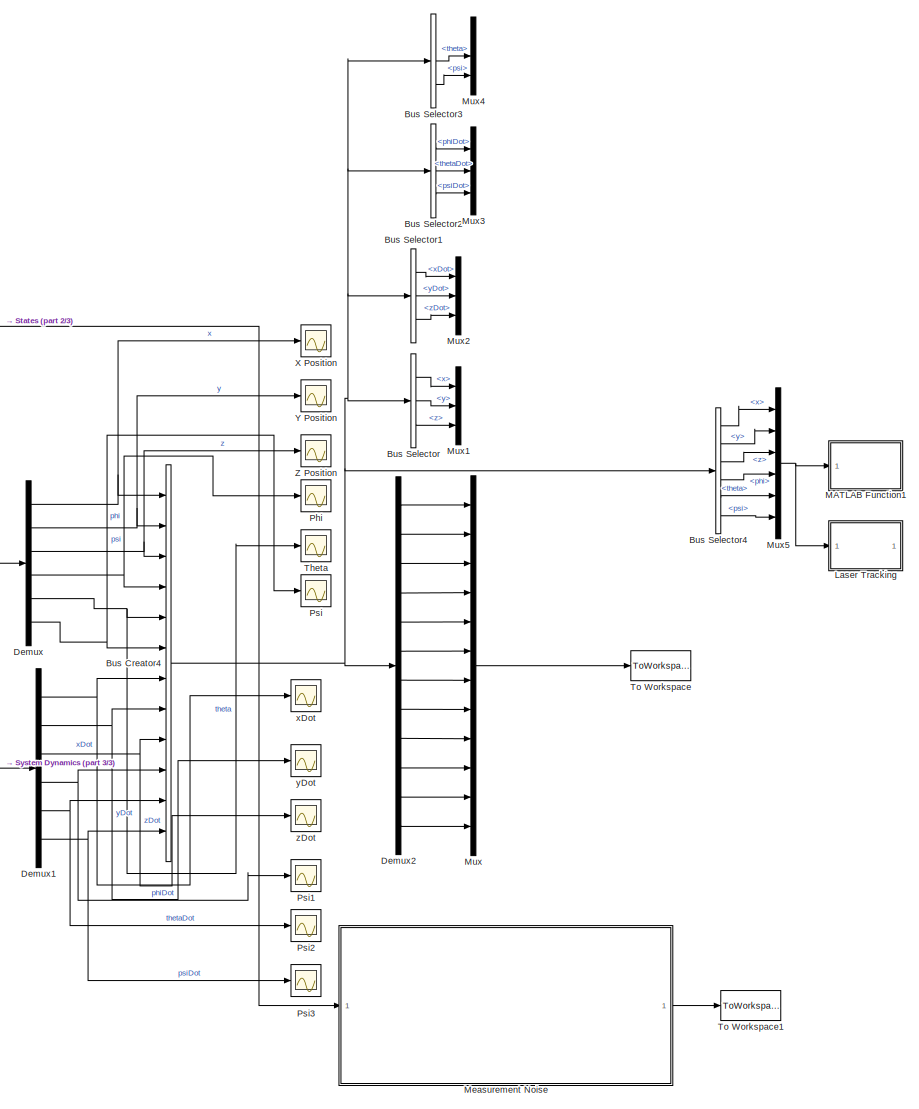
[diagram: root canvas - part 1/3, right side, full height]
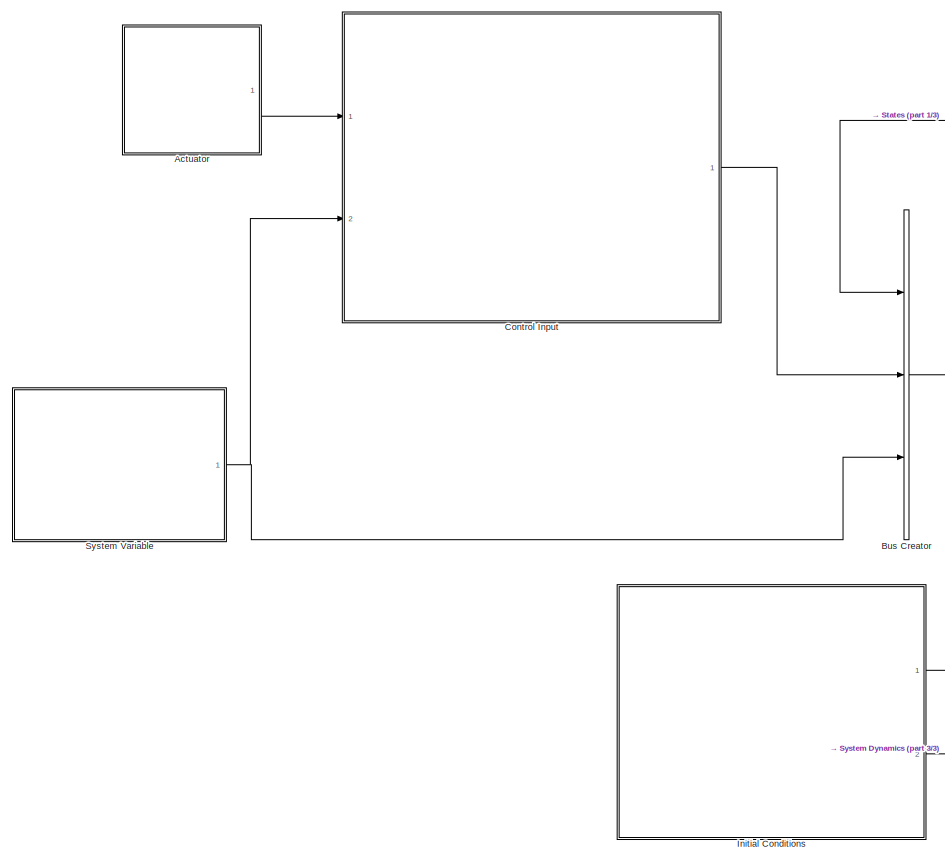
[diagram: root canvas - part 2/3, left side, full height]
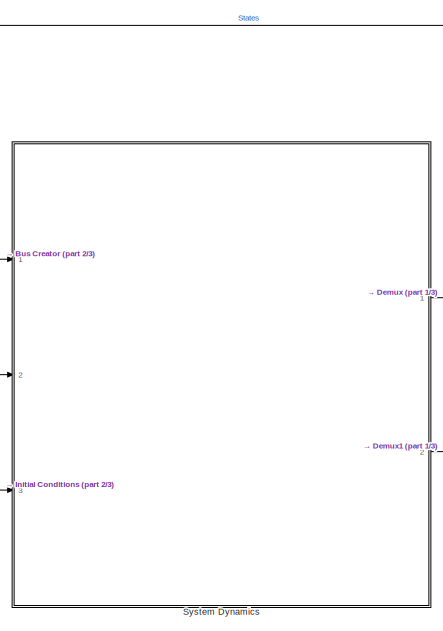
[diagram: root canvas - part 3/3, central region]
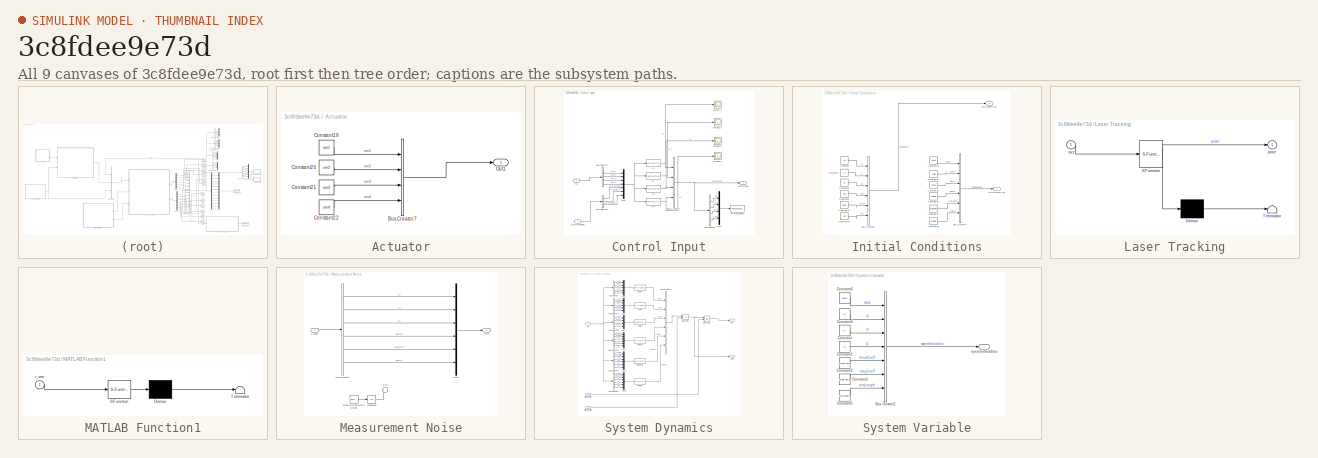
[diagram: thumbnail index - all 9 canvases of the model, root first then tree order]
MODEL slx_3c8fdee9e73d
KIND model
CONFIG AbsTol = auto
CONFIG EnableMultiTasking = off
CONFIG FixedStep = auto
CONFIG MaxStep = auto
CONFIG MinStep = auto
CONFIG RelTol = 1e-3
CONFIG SampleTimeConstraint = Unconstrained
CONFIG Solver = VariableStepAuto
CONFIG SolverName = VariableStepAuto
CONFIG StartTime = 0.0
CONFIG StopTime = 10.0
BLOCK [SubSystem] Actuator
  Ports = [0, 1]
  RequestExecContextInheritance = off
BLOCK [BusCreator] Actuator/Bus Creator7
  DisplayOption = bar
  InheritFromInputs = on
  Inputs = 4
  Ports = [4, 1]
BLOCK [Constant] Actuator/Constant19
  Value = om1
BLOCK [Constant] Actuator/Constant20
  Value = om2
BLOCK [Constant] Actuator/Constant21
  Value = om3
BLOCK [Constant] Actuator/Constant22
  Value = om4
BLOCK [Outport] Actuator/Out1
  IconDisplay = Port number
BLOCK [BusCreator] Bus Creator
  DisplayOption = bar
  InheritFromInputs = on
  Inputs = 3
  Ports = [3, 1]
BLOCK [BusCreator] Bus Creator4
  DisplayOption = bar
  InheritFromInputs = on
  Inputs = 12
  Ports = [12, 1]
BLOCK [BusSelector] Bus Selector
  Commented = on
  OutputAsBus = off
  OutputSignals = x,y,z
  Ports = [1, 3]
BLOCK [BusSelector] Bus Selector1
  Commented = on
  OutputAsBus = off
  OutputSignals = xDot,yDot,zDot
  Ports = [1, 3]
BLOCK [BusSelector] Bus Selector2
  Commented = on
  OutputAsBus = off
  OutputSignals = phiDot,thetaDot,psiDot
  Ports = [1, 3]
BLOCK [BusSelector] Bus Selector3
  Commented = on
  OutputAsBus = off
  OutputSignals = phi,theta,psi
  Ports = [1, 3]
BLOCK [BusSelector] Bus Selector4
  Commented = on
  OutputAsBus = off
  OutputSignals = x,y,z,phi,theta,psi
  Ports = [1, 6]
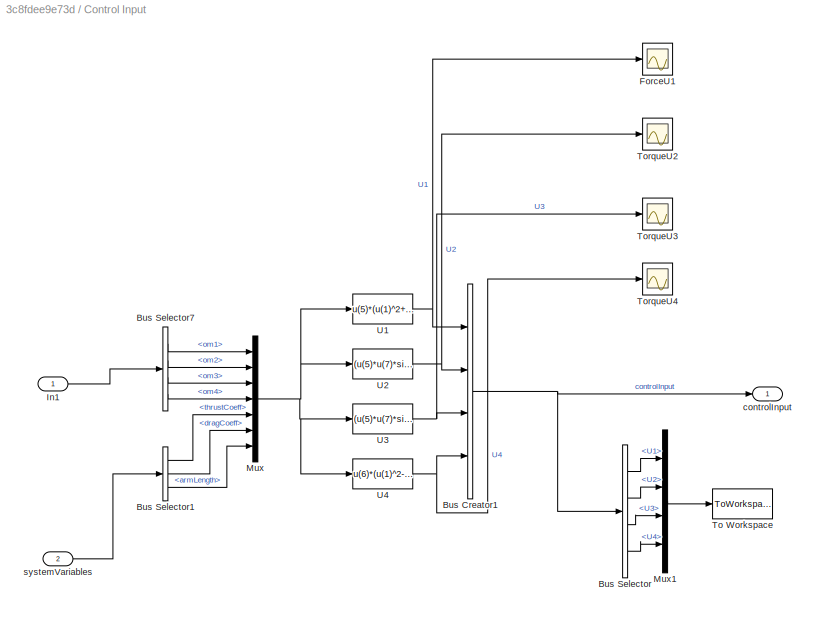
BLOCK [SubSystem] Control Input
  Ports = [2, 1]
  RequestExecContextInheritance = off
BLOCK [BusCreator] Control Input/Bus Creator1
  DisplayOption = bar
  InheritFromInputs = on
  Inputs = 4
  Ports = [4, 1]
BLOCK [BusSelector] Control Input/Bus Selector
  OutputAsBus = off
  OutputSignals = U1,U2,U3,U4
  Ports = [1, 4]
BLOCK [BusSelector] Control Input/Bus Selector1
  OutputAsBus = off
  OutputSignals = thrustCoeff,dragCoeff,armLength
  Ports = [1, 3]
BLOCK [BusSelector] Control Input/Bus Selector7
  OutputAsBus = off
  OutputSignals = om1,om2,om3,om4
  Ports = [1, 4]
BLOCK [Scope] Control Input/ForceU1
  Floating = off
  NumInputPorts = 1
  Ports = [1]
  ScopeSpecificationString = Simulink.scopes.TimeScopeBlockCfg('CurrentConfiguration', extmgr.ConfigurationSet(extmgr.Configuration('Core','General UI',true),extmgr.Configuration('Core','Source UI',true),extmgr.Configuration('Sources','WiredSimulink',true,'DataLoggingVariableName','ScopeData4'),extmgr.Configuration('Visuals','Time Domain',true,'SerializedDisplays',{struct('MinYLimReal','9.00000','MaxYLimReal','11.00000','YLab...<+1392ch>
BLOCK [Inport] Control Input/In1
  IconDisplay = Port number
BLOCK [Mux] Control Input/Mux
  DisplayOption = bar
  Inputs = 7
  Ports = [7, 1]
BLOCK [Mux] Control Input/Mux1
  DisplayOption = bar
  Ports = [4, 1]
BLOCK [ToWorkspace] Control Input/To Workspace
  FixptAsFi = on
  MaxDataPoints = inf
  Ports = [1]
  SampleTime = -1
  Save2DSignal = 3-D array (concatenate along third dimension)
  SaveFormat = Timeseries
  VariableName = Input
BLOCK [Scope] Control Input/TorqueU2
  Floating = off
  NumInputPorts = 1
  Ports = [1]
  ScopeSpecificationString = Simulink.scopes.TimeScopeBlockCfg('CurrentConfiguration', extmgr.ConfigurationSet(extmgr.Configuration('Core','General UI',true),extmgr.Configuration('Core','Source UI',true),extmgr.Configuration('Sources','WiredSimulink',true,'DataLoggingVariableName','ScopeData7'),extmgr.Configuration('Visuals','Time Domain',true,'SerializedDisplays',{struct('MinYLimReal','-1.00000','MaxYLimReal','1.00000','YLab...<+1390ch>
BLOCK [Scope] Control Input/TorqueU3
  Floating = off
  NumInputPorts = 1
  Ports = [1]
  ScopeSpecificationString = Simulink.scopes.TimeScopeBlockCfg('CurrentConfiguration', extmgr.ConfigurationSet(extmgr.Configuration('Core','General UI',true),extmgr.Configuration('Core','Source UI',true),extmgr.Configuration('Sources','WiredSimulink',true,'DataLoggingVariableName','ScopeData5'),extmgr.Configuration('Visuals','Time Domain',true,'SerializedDisplays',{struct('MinYLimReal','-1.00000','MaxYLimReal','1.00000','YLab...<+1361ch>
BLOCK [Scope] Control Input/TorqueU4
  Floating = off
  NumInputPorts = 1
  Ports = [1]
  ScopeSpecificationString = Simulink.scopes.TimeScopeBlockCfg('CurrentConfiguration', extmgr.ConfigurationSet(extmgr.Configuration('Core','General UI',true),extmgr.Configuration('Core','Source UI',true),extmgr.Configuration('Sources','WiredSimulink',true,'DataLoggingVariableName','ScopeData6'),extmgr.Configuration('Visuals','Time Domain',true,'SerializedDisplays',{struct('MinYLimReal','-1.00000','MaxYLimReal','1.00000','YLab...<+1361ch>
BLOCK [Fcn] Control Input/U1
  Expr = u(5)*(u(1)^2+u(2)^2+u(3)^2+u(4)^2)
BLOCK [Fcn] Control Input/U2
  Expr = (u(5)*u(7)*sin(pi/4))*(u(1)^2+u(2)^2-u(3)^2-u(4)^2)
BLOCK [Fcn] Control Input/U3
  Expr = (u(5)*u(7)*sin(pi/4))*(u(1)^2-u(2)^2-u(3)^2+u(4)^2)
BLOCK [Fcn] Control Input/U4
  Expr = u(6)*(u(1)^2-u(2)^2+u(3)^2-u(4)^2)
BLOCK [Outport] Control Input/controlInput
  IconDisplay = Port number
BLOCK [Inport] Control Input/systemVariables
  IconDisplay = Port number
  Port = 2
BLOCK [Demux] Demux
  DisplayOption = bar
  Outputs = 6
  Ports = [1, 6]
BLOCK [Demux] Demux1
  DisplayOption = bar
  Outputs = 6
  Ports = [1, 6]
BLOCK [Demux] Demux2
  DisplayOption = bar
  Outputs = 12
  Ports = [1, 12]
BLOCK [SubSystem] Initial Conditions
  Ports = [0, 2]
  RequestExecContextInheritance = off
BLOCK [BusCreator] Initial Conditions/Bus Creator5
  DisplayOption = bar
  InheritFromInputs = on
  Inputs = 6
  Ports = [6, 1]
BLOCK [BusCreator] Initial Conditions/Bus Creator6
  DisplayOption = bar
  InheritFromInputs = on
  Inputs = 6
  Ports = [6, 1]
BLOCK [Constant] Initial Conditions/Constant
  Value = x0
BLOCK [Constant] Initial Conditions/Constant11
  Value = theta0
BLOCK [Constant] Initial Conditions/Constant12
  Value = psi0
BLOCK [Constant] Initial Conditions/Constant13
  Value = xDot0
BLOCK [Constant] Initial Conditions/Constant14
  Value = yDot0
BLOCK [Constant] Initial Conditions/Constant15
  Value = zDot0
BLOCK [Constant] Initial Conditions/Constant16
  Value = phiDot0
BLOCK [Constant] Initial Conditions/Constant17
  Value = thetaDot0
BLOCK [Constant] Initial Conditions/Constant18
  Value = psiDot0
BLOCK [Constant] Initial Conditions/Constant7
  Value = y0
BLOCK [Constant] Initial Conditions/Constant8
  Value = z0
BLOCK [Constant] Initial Conditions/Constant9
  Value = phi0
BLOCK [Outport] Initial Conditions/initialPosition
  IconDisplay = Port number
  Port = 2
BLOCK [Outport] Initial Conditions/initialVelocities
  IconDisplay = Port number
BLOCK [SubSystem] Laser Tracking
  Commented = on
  ErrorFcn = Stateflow.Translate.translate
  PermitHierarchicalResolution = ExplicitOnly
  Ports = [1, 1]
  RequestExecContextInheritance = off
  SFBlockType = MATLAB Function
  TreatAsAtomicUnit = on
BLOCK [Demux] Laser Tracking/ Demux 
  Outputs = 1
  Ports = [1, 1]
BLOCK [S-Function] Laser Tracking/ SFunction 
  EnableBusSupport = on
  FunctionName = sf_sfun
  PortCounts = [1 2]
  Ports = [1, 2]
  SFcnIsStateOwnerBlock = off
  SFunctionDeploymentMode = off
  Tag = Stateflow S-Function EENGquadcopter_control 4
BLOCK [Terminator] Laser Tracking/ Terminator 
BLOCK [Outport] Laser Tracking/pose
  IconDisplay = Port number
BLOCK [Inport] Laser Tracking/xyz
  IconDisplay = Port number
BLOCK [SubSystem] MATLAB Function1
  Commented = on
  ErrorFcn = Stateflow.Translate.translate
  PermitHierarchicalResolution = ExplicitOnly
  Ports = [1]
  RequestExecContextInheritance = off
  SFBlockType = MATLAB Function
  TreatAsAtomicUnit = on
BLOCK [Demux] MATLAB Function1/ Demux 
  Outputs = 1
  Ports = [1, 1]
BLOCK [S-Function] MATLAB Function1/ SFunction 
  EnableBusSupport = on
  FunctionName = sf_sfun
  PortCounts = [1 1]
  Ports = [1, 1]
  SFcnIsStateOwnerBlock = off
  SFunctionDeploymentMode = off
  Tag = Stateflow S-Function EENGquadcopter_control 1
BLOCK [Terminator] MATLAB Function1/ Terminator 
BLOCK [Inport] MATLAB Function1/r_vec
  IconDisplay = Port number
BLOCK [SubSystem] Measurement Noise
  Ports = [1, 1]
  RequestExecContextInheritance = off
BLOCK [Reference] Measurement Noise/Band-Limited White Noise1  REF=simulink/Sources/Band-Limited
White Noise
  Commented = on
  Ports = [0, 1]
  SourceBlock = simulink/Sources/Band-Limited\nWhite Noise
  SourceProductBaseCode = SL
  SourceProductName = Simulink
  SourceType = Band-Limited White Noise.
BLOCK [BusSelector] Measurement Noise/Bus Selector
  OutputAsBus = off
  OutputSignals = x,y,z,phiDot,thetaDot,psiDot
  Ports = [1, 6]
BLOCK [Integrator] Measurement Noise/Integrator
  Commented = on
  Ports = [1, 1]
BLOCK [Mux] Measurement Noise/Mux1
  DisplayOption = bar
  Inputs = 6
  Ports = [6, 1]
BLOCK [Outport] Measurement Noise/Out1
  IconDisplay = Port number
BLOCK [Inport] Measurement Noise/States
  IconDisplay = Port number
BLOCK [Sum] Measurement Noise/Sum
  Commented = on
  IconShape = round
  InputSameDT = off
  Inputs = |++
  OutDataTypeStr = Inherit: Inherit via internal rule
  Ports = [2, 1]
  SaturateOnIntegerOverflow = off
BLOCK [Mux] Mux
  DisplayOption = bar
  Inputs = 12
  Ports = [12, 1]
BLOCK [Mux] Mux1
  Commented = on
  DisplayOption = bar
  Inputs = 3
  Ports = [3, 1]
BLOCK [Mux] Mux2
  Commented = on
  DisplayOption = bar
  Inputs = 3
  Ports = [3, 1]
BLOCK [Mux] Mux3
  Commented = on
  DisplayOption = bar
  Inputs = 3
  Ports = [3, 1]
BLOCK [Mux] Mux4
  Commented = on
  DisplayOption = bar
  Inputs = 3
  Ports = [3, 1]
BLOCK [Mux] Mux5
  Commented = on
  DisplayOption = bar
  Inputs = 6
  Ports = [6, 1]
BLOCK [Scope] Phi
  Floating = off
  NumInputPorts = 1
  Ports = [1]
  ScopeSpecificationString = Simulink.scopes.TimeScopeBlockCfg('CurrentConfiguration', extmgr.ConfigurationSet(extmgr.Configuration('Core','General UI',true),extmgr.Configuration('Core','Source UI',true),extmgr.Configuration('Sources','WiredSimulink',true,'DataLoggingVariableName','ScopeData1'),extmgr.Configuration('Visuals','Time Domain',true,'SerializedDisplays',{struct('MinYLimReal','-1.00000','MaxYLimReal','1.00000','YLab...<+1391ch>
BLOCK [Scope] Psi
  Floating = off
  NumInputPorts = 1
  Ports = [1]
  ScopeSpecificationString = Simulink.scopes.TimeScopeBlockCfg('CurrentConfiguration', extmgr.ConfigurationSet(extmgr.Configuration('Core','General UI',true),extmgr.Configuration('Core','Source UI',true),extmgr.Configuration('Sources','WiredSimulink',true,'DataLoggingVariableName','ScopeData2'),extmgr.Configuration('Visuals','Time Domain',true,'SerializedDisplays',{struct('MinYLimReal','-1.00000','MaxYLimReal','1.00000','YLab...<+1362ch>
BLOCK [Scope] Psi1
  Floating = off
  NumInputPorts = 1
  Ports = [1]
  ScopeSpecificationString = Simulink.scopes.TimeScopeBlockCfg('CurrentConfiguration', extmgr.ConfigurationSet(extmgr.Configuration('Core','General UI',true),extmgr.Configuration('Core','Source UI',true),extmgr.Configuration('Sources','WiredSimulink',true,'DataLoggingVariableName','ScopeData3'),extmgr.Configuration('Visuals','Time Domain',true,'SerializedDisplays',{struct('MinYLimReal','-1.00000','MaxYLimReal','1.00000','YLab...<+1365ch>
BLOCK [Scope] Psi2
  Floating = off
  NumInputPorts = 1
  Ports = [1]
  ScopeSpecificationString = Simulink.scopes.TimeScopeBlockCfg('CurrentConfiguration', extmgr.ConfigurationSet(extmgr.Configuration('Core','General UI',true),extmgr.Configuration('Core','Source UI',true),extmgr.Configuration('Sources','WiredSimulink',true,'DataLoggingVariableName','ScopeData4'),extmgr.Configuration('Visuals','Time Domain',true,'SerializedDisplays',{struct('MinYLimReal','-1.00000','MaxYLimReal','1.00000','YLab...<+1367ch>
BLOCK [Scope] Psi3
  Floating = off
  NumInputPorts = 1
  Ports = [1]
  ScopeSpecificationString = Simulink.scopes.TimeScopeBlockCfg('CurrentConfiguration', extmgr.ConfigurationSet(extmgr.Configuration('Core','General UI',true),extmgr.Configuration('Core','Source UI',true),extmgr.Configuration('Sources','WiredSimulink',true,'DataLoggingVariableName','ScopeData5'),extmgr.Configuration('Visuals','Time Domain',true,'SerializedDisplays',{struct('MinYLimReal','-1.00000','MaxYLimReal','1.00000','YLab...<+1362ch>
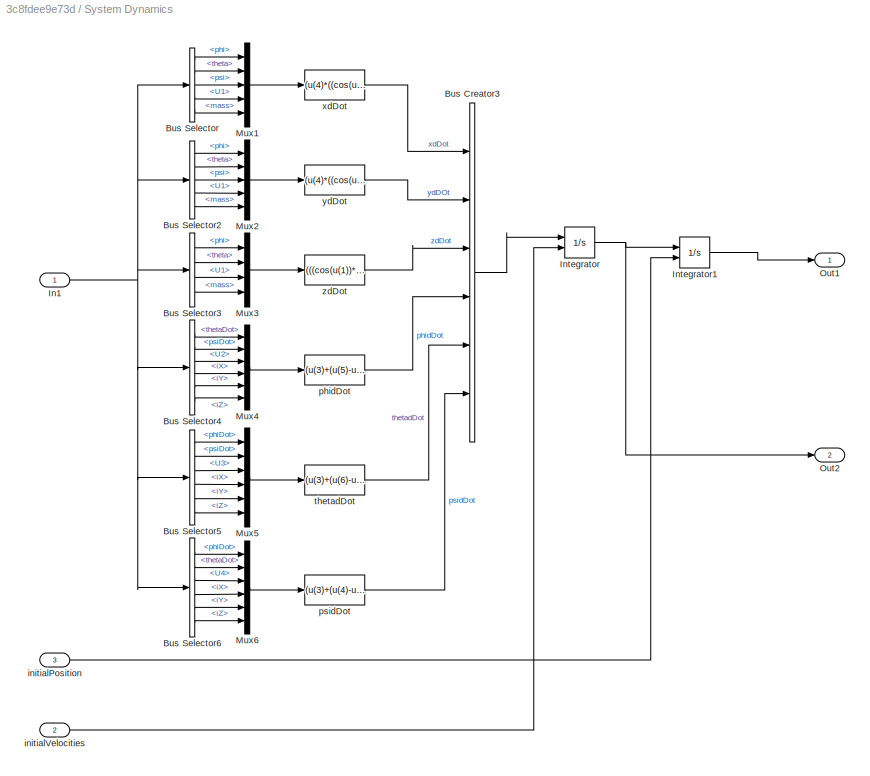
BLOCK [SubSystem] System Dynamics
  Ports = [3, 2]
  RequestExecContextInheritance = off
BLOCK [BusCreator] System Dynamics/Bus Creator3
  DisplayOption = bar
  InheritFromInputs = on
  Inputs = 6
  Ports = [6, 1]
BLOCK [BusSelector] System Dynamics/Bus Selector
  OutputAsBus = off
  OutputSignals = States.phi,States.theta,States.psi,controlInput.U1,systemVariables.mass
  Ports = [1, 5]
BLOCK [BusSelector] System Dynamics/Bus Selector2
  OutputAsBus = off
  OutputSignals = States.phi,States.theta,States.psi,controlInput.U1,systemVariables.mass
  Ports = [1, 5]
BLOCK [BusSelector] System Dynamics/Bus Selector3
  OutputAsBus = off
  OutputSignals = States.phi,States.theta,controlInput.U1,systemVariables.mass
  Ports = [1, 4]
BLOCK [BusSelector] System Dynamics/Bus Selector4
  OutputAsBus = off
  OutputSignals = States.thetaDot,States.psiDot,controlInput.U2,systemVariables.iX,systemVariables.iY,systemVariables.iZ
  Ports = [1, 6]
BLOCK [BusSelector] System Dynamics/Bus Selector5
  OutputAsBus = off
  OutputSignals = States.phiDot,States.psiDot,controlInput.U3,systemVariables.iX,systemVariables.iY,systemVariables.iZ
  Ports = [1, 6]
BLOCK [BusSelector] System Dynamics/Bus Selector6
  OutputAsBus = off
  OutputSignals = States.phiDot,States.thetaDot,controlInput.U4,systemVariables.iX,systemVariables.iY,systemVariables.iZ
  Ports = [1, 6]
BLOCK [Inport] System Dynamics/In1
  IconDisplay = Port number
BLOCK [Integrator] System Dynamics/Integrator
  InitialConditionSource = external
  Ports = [2, 1]
BLOCK [Integrator] System Dynamics/Integrator1
  InitialConditionSource = external
  Ports = [2, 1]
BLOCK [Mux] System Dynamics/Mux1
  DisplayOption = bar
  Inputs = 5
  Ports = [5, 1]
BLOCK [Mux] System Dynamics/Mux2
  DisplayOption = bar
  Inputs = 5
  Ports = [5, 1]
BLOCK [Mux] System Dynamics/Mux3
  DisplayOption = bar
  Ports = [4, 1]
BLOCK [Mux] System Dynamics/Mux4
  DisplayOption = bar
  Inputs = 6
  Ports = [6, 1]
BLOCK [Mux] System Dynamics/Mux5
  DisplayOption = bar
  Inputs = 6
  Ports = [6, 1]
BLOCK [Mux] System Dynamics/Mux6
  DisplayOption = bar
  Inputs = 6
  Ports = [6, 1]
BLOCK [Outport] System Dynamics/Out1
  IconDisplay = Port number
BLOCK [Outport] System Dynamics/Out2
  IconDisplay = Port number
  Port = 2
BLOCK [Inport] System Dynamics/initialPosition
  IconDisplay = Port number
  Port = 3
BLOCK [Inport] System Dynamics/initialVelocities
  IconDisplay = Port number
  Port = 2
BLOCK [Fcn] System Dynamics/phidDot
  Expr = (u(3)+(u(5)-u(6))*(u(1)*u(2)))/u(4)
BLOCK [Fcn] System Dynamics/psidDot
  Expr = (u(3)+(u(4)-u(5))*(u(1)*u(2)))/u(6)
BLOCK [Fcn] System Dynamics/thetadDot
  Expr = (u(3)+(u(6)-u(4))*(u(1)*u(2)))/u(5)
BLOCK [Fcn] System Dynamics/xdDot
  Expr = (u(4)*((cos(u(1))*sin(u(2))*cos(u(3)))+(sin(u(1))*sin(u(3)))))/u(5)
BLOCK [Fcn] System Dynamics/ydDot
  Expr = (u(4)*((cos(u(1))*sin(u(2))*sin(u(3)))-(sin(u(1))*cos(u(3)))))/u(5)
BLOCK [Fcn] System Dynamics/zdDot
  Expr = (((cos(u(1))*cos(u(2)))*u(3))/u(4))-9.81
BLOCK [SubSystem] System Variable
  Ports = [0, 1]
  RequestExecContextInheritance = off
BLOCK [BusCreator] System Variable/Bus Creator2
  DisplayOption = bar
  InheritFromInputs = on
  Inputs = 7
  Ports = [7, 1]
BLOCK [Constant] System Variable/Constant
  Value = iY
BLOCK [Constant] System Variable/Constant1
  Value = iZ
BLOCK [Constant] System Variable/Constant2
  Value = thrustFactor
BLOCK [Constant] System Variable/Constant3
  Value = dragFactor
BLOCK [Constant] System Variable/Constant4
  Value = iX
BLOCK [Constant] System Variable/Constant5
  Value = armLength
BLOCK [Constant] System Variable/Constant6
  Value = mass
BLOCK [Outport] System Variable/systemVariables
  IconDisplay = Port number
BLOCK [Scope] Theta
  Floating = off
  NumInputPorts = 1
  Ports = [1]
  ScopeSpecificationString = Simulink.scopes.TimeScopeBlockCfg('CurrentConfiguration', extmgr.ConfigurationSet(extmgr.Configuration('Core','General UI',true),extmgr.Configuration('Core','Source UI',true),extmgr.Configuration('Sources','WiredSimulink',true,'DataLoggingVariableName','ScopeData6'),extmgr.Configuration('Visuals','Time Domain',true,'SerializedDisplays',{struct('MinYLimReal','-1.00000','MaxYLimReal','1.00000','YLab...<+1393ch>
BLOCK [ToWorkspace] To Workspace
  FixptAsFi = on
  MaxDataPoints = inf
  Ports = [1]
  SampleTime = Ts
  Save2DSignal = 3-D array (concatenate along third dimension)
  SaveFormat = Timeseries
  VariableName = simout
BLOCK [ToWorkspace] To Workspace1
  FixptAsFi = on
  MaxDataPoints = inf
  Ports = [1]
  SampleTime = -1
  Save2DSignal = 3-D array (concatenate along third dimension)
  SaveFormat = Timeseries
  VariableName = sensorMeasure
BLOCK [Scope] X Position
  Floating = off
  NumInputPorts = 1
  Ports = [1]
  ScopeSpecificationString = Simulink.scopes.TimeScopeBlockCfg('CurrentConfiguration', extmgr.ConfigurationSet(extmgr.Configuration('Core','General UI',true),extmgr.Configuration('Core','Source UI',true),extmgr.Configuration('Sources','WiredSimulink',true,'DataLoggingVariableName','ScopeData7'),extmgr.Configuration('Visuals','Time Domain',true,'SerializedDisplays',{struct('MinYLimReal','-1.00000','MaxYLimReal','1.00000','YLab...<+1389ch>
BLOCK [Scope] Y Position
  Floating = off
  NumInputPorts = 1
  Ports = [1]
  ScopeSpecificationString = Simulink.scopes.TimeScopeBlockCfg('CurrentConfiguration', extmgr.ConfigurationSet(extmgr.Configuration('Core','General UI',true),extmgr.Configuration('Core','Source UI',true),extmgr.Configuration('Sources','WiredSimulink',true,'DataLoggingVariableName','ScopeData8'),extmgr.Configuration('Visuals','Time Domain',true,'SerializedDisplays',{struct('MinYLimReal','-1.00000','MaxYLimReal','1.00000','YLab...<+1360ch>
BLOCK [Scope] Z Position
  Floating = off
  NumInputPorts = 1
  Ports = [1]
  ScopeSpecificationString = Simulink.scopes.TimeScopeBlockCfg('CurrentConfiguration', extmgr.ConfigurationSet(extmgr.Configuration('Core','General UI',true),extmgr.Configuration('Core','Source UI',true),extmgr.Configuration('Sources','WiredSimulink',true,'DataLoggingVariableName','ScopeData9'),extmgr.Configuration('Visuals','Time Domain',true,'SerializedDisplays',{struct('MinYLimReal','-0.12373','MaxYLimReal','1.11359','YLab...<+1360ch>
BLOCK [Scope] xDot
  Floating = off
  NumInputPorts = 1
  Ports = [1]
  ScopeSpecificationString = Simulink.scopes.TimeScopeBlockCfg('CurrentConfiguration', extmgr.ConfigurationSet(extmgr.Configuration('Core','General UI',true),extmgr.Configuration('Core','Source UI',true),extmgr.Configuration('Sources','WiredSimulink',true,'DataLoggingVariableName','ScopeData10'),extmgr.Configuration('Visuals','Time Domain',true,'SerializedDisplays',{struct('MinYLimReal','-1.00000','MaxYLimReal','1.00000','YLa...<+1364ch>
BLOCK [Scope] yDot
  Floating = off
  NumInputPorts = 1
  Ports = [1]
  ScopeSpecificationString = Simulink.scopes.TimeScopeBlockCfg('CurrentConfiguration', extmgr.ConfigurationSet(extmgr.Configuration('Core','General UI',true),extmgr.Configuration('Core','Source UI',true),extmgr.Configuration('Sources','WiredSimulink',true,'DataLoggingVariableName','ScopeData11'),extmgr.Configuration('Visuals','Time Domain',true,'SerializedDisplays',{struct('MinYLimReal','-1.00000','MaxYLimReal','1.00000','YLa...<+1364ch>
BLOCK [Scope] zDot
  Floating = off
  NumInputPorts = 1
  Ports = [1]
  ScopeSpecificationString = Simulink.scopes.TimeScopeBlockCfg('CurrentConfiguration', extmgr.ConfigurationSet(extmgr.Configuration('Core','General UI',true),extmgr.Configuration('Core','Source UI',true),extmgr.Configuration('Sources','WiredSimulink',true,'DataLoggingVariableName','ScopeData12'),extmgr.Configuration('Visuals','Time Domain',true,'SerializedDisplays',{struct('MinYLimReal','-0.05124','MaxYLimReal','0.4612','YLab...<+1360ch>
LINE Actuator/Bus Creator7:1 -> Actuator/Out1:1
LINE Actuator/Constant19:1 -> Actuator/Bus Creator7:1
LINE Actuator/Constant20:1 -> Actuator/Bus Creator7:2
LINE Actuator/Constant21:1 -> Actuator/Bus Creator7:3
LINE Actuator/Constant22:1 -> Actuator/Bus Creator7:4
LINE Actuator:1 -> Control Input:1
NET Bus Creator4:1 -> Bus Creator:1, Bus Selector1:1, Bus Selector2:1, Bus Selector3:1, Bus Selector4:1, Bus Selector:1, Demux2:1, Measurement Noise:1
LINE Bus Creator:1 -> System Dynamics:1
LINE Bus Selector1:1 -> Mux2:1
LINE Bus Selector1:2 -> Mux2:2
LINE Bus Selector1:3 -> Mux2:3
LINE Bus Selector2:1 -> Mux3:1
LINE Bus Selector2:2 -> Mux3:2
LINE Bus Selector2:3 -> Mux3:3
LINE Bus Selector3:2 -> Mux4:2
LINE Bus Selector3:3 -> Mux4:3
LINE Bus Selector4:1 -> Mux5:1
LINE Bus Selector4:2 -> Mux5:2
LINE Bus Selector4:3 -> Mux5:3
LINE Bus Selector4:4 -> Mux5:4
LINE Bus Selector4:5 -> Mux5:5
LINE Bus Selector4:6 -> Mux5:6
LINE Bus Selector:1 -> Mux1:1
LINE Bus Selector:2 -> Mux1:2
LINE Bus Selector:3 -> Mux1:3
NET Control Input/Bus Creator1:1 -> Control Input/Bus Selector:1, Control Input/controlInput:1
LINE Control Input/Bus Selector1:1 -> Control Input/Mux:5
LINE Control Input/Bus Selector1:2 -> Control Input/Mux:6
LINE Control Input/Bus Selector1:3 -> Control Input/Mux:7
LINE Control Input/Bus Selector7:1 -> Control Input/Mux:1
LINE Control Input/Bus Selector7:2 -> Control Input/Mux:2
LINE Control Input/Bus Selector7:3 -> Control Input/Mux:3
LINE Control Input/Bus Selector7:4 -> Control Input/Mux:4
LINE Control Input/Bus Selector:1 -> Control Input/Mux1:1
LINE Control Input/Bus Selector:2 -> Control Input/Mux1:2
LINE Control Input/Bus Selector:3 -> Control Input/Mux1:3
LINE Control Input/Bus Selector:4 -> Control Input/Mux1:4
LINE Control Input/In1:1 -> Control Input/Bus Selector7:1
LINE Control Input/Mux1:1 -> Control Input/To Workspace:1
NET Control Input/Mux:1 -> Control Input/U1:1, Control Input/U2:1, Control Input/U3:1, Control Input/U4:1
NET Control Input/U1:1 -> Control Input/Bus Creator1:1, Control Input/ForceU1:1
NET Control Input/U2:1 -> Control Input/Bus Creator1:2, Control Input/TorqueU2:1
NET Control Input/U3:1 -> Control Input/Bus Creator1:3, Control Input/TorqueU3:1
NET Control Input/U4:1 -> Control Input/Bus Creator1:4, Control Input/TorqueU4:1
LINE Control Input/systemVariables:1 -> Control Input/Bus Selector1:1
LINE Control Input:1 -> Bus Creator:2
NET Demux1:1 -> Bus Creator4:7, xDot:1
NET Demux1:2 -> Bus Creator4:8, yDot:1
NET Demux1:3 -> Bus Creator4:9, zDot:1
NET Demux1:4 -> Bus Creator4:10, Psi1:1
NET Demux1:5 -> Bus Creator4:11, Psi2:1
NET Demux1:6 -> Bus Creator4:12, Psi3:1
LINE Demux2:1 -> Mux:1
LINE Demux2:10 -> Mux:10
LINE Demux2:11 -> Mux:11
LINE Demux2:12 -> Mux:12
LINE Demux2:2 -> Mux:2
LINE Demux2:3 -> Mux:3
LINE Demux2:4 -> Mux:4
LINE Demux2:5 -> Mux:5
LINE Demux2:6 -> Mux:6
LINE Demux2:7 -> Mux:7
LINE Demux2:8 -> Mux:8
LINE Demux2:9 -> Mux:9
NET Demux:1 -> Bus Creator4:1, X Position:1
NET Demux:2 -> Bus Creator4:2, Y Position:1
NET Demux:3 -> Bus Creator4:3, Z Position:1
NET Demux:4 -> Bus Creator4:4, Phi:1
NET Demux:5 -> Bus Creator4:5, Theta:1
NET Demux:6 -> Bus Creator4:6, Psi:1
LINE Initial Conditions/Bus Creator5:1 -> Initial Conditions/initialPosition:1
LINE Initial Conditions/Bus Creator6:1 -> Initial Conditions/initialVelocities:1
LINE Initial Conditions/Constant11:1 -> Initial Conditions/Bus Creator5:5
LINE Initial Conditions/Constant12:1 -> Initial Conditions/Bus Creator5:6
LINE Initial Conditions/Constant13:1 -> Initial Conditions/Bus Creator6:1
LINE Initial Conditions/Constant14:1 -> Initial Conditions/Bus Creator6:2
LINE Initial Conditions/Constant15:1 -> Initial Conditions/Bus Creator6:3
LINE Initial Conditions/Constant16:1 -> Initial Conditions/Bus Creator6:4
LINE Initial Conditions/Constant17:1 -> Initial Conditions/Bus Creator6:5
LINE Initial Conditions/Constant18:1 -> Initial Conditions/Bus Creator6:6
LINE Initial Conditions/Constant7:1 -> Initial Conditions/Bus Creator5:2
LINE Initial Conditions/Constant8:1 -> Initial Conditions/Bus Creator5:3
LINE Initial Conditions/Constant9:1 -> Initial Conditions/Bus Creator5:4
LINE Initial Conditions/Constant:1 -> Initial Conditions/Bus Creator5:1
LINE Initial Conditions:1 -> System Dynamics:2
LINE Initial Conditions:2 -> System Dynamics:3
LINE Measurement Noise/Band-Limited White Noise1:1 -> Measurement Noise/Integrator:1
LINE Measurement Noise/Bus Selector:1 -> Measurement Noise/Mux1:1
LINE Measurement Noise/Bus Selector:2 -> Measurement Noise/Mux1:2
LINE Measurement Noise/Bus Selector:3 -> Measurement Noise/Mux1:3
LINE Measurement Noise/Bus Selector:4 -> Measurement Noise/Mux1:4
LINE Measurement Noise/Bus Selector:5 -> Measurement Noise/Mux1:5
LINE Measurement Noise/Bus Selector:6 -> Measurement Noise/Mux1:6
LINE Measurement Noise/Integrator:1 -> Measurement Noise/Sum:2
LINE Measurement Noise/Mux1:1 -> Measurement Noise/Out1:1
LINE Measurement Noise/States:1 -> Measurement Noise/Bus Selector:1
LINE Measurement Noise:1 -> To Workspace1:1
NET Mux5:1 -> Laser Tracking:1, MATLAB Function1:1
LINE Mux:1 -> To Workspace:1
LINE System Dynamics/Bus Creator3:1 -> System Dynamics/Integrator:1
LINE System Dynamics/Bus Selector2:1 -> System Dynamics/Mux2:1
LINE System Dynamics/Bus Selector2:2 -> System Dynamics/Mux2:2
LINE System Dynamics/Bus Selector2:3 -> System Dynamics/Mux2:3
LINE System Dynamics/Bus Selector2:4 -> System Dynamics/Mux2:4
LINE System Dynamics/Bus Selector2:5 -> System Dynamics/Mux2:5
LINE System Dynamics/Bus Selector3:1 -> System Dynamics/Mux3:1
LINE System Dynamics/Bus Selector3:2 -> System Dynamics/Mux3:2
LINE System Dynamics/Bus Selector3:3 -> System Dynamics/Mux3:3
LINE System Dynamics/Bus Selector3:4 -> System Dynamics/Mux3:4
LINE System Dynamics/Bus Selector4:1 -> System Dynamics/Mux4:1
LINE System Dynamics/Bus Selector4:2 -> System Dynamics/Mux4:2
LINE System Dynamics/Bus Selector4:3 -> System Dynamics/Mux4:3
LINE System Dynamics/Bus Selector4:4 -> System Dynamics/Mux4:4
LINE System Dynamics/Bus Selector4:5 -> System Dynamics/Mux4:5
LINE System Dynamics/Bus Selector4:6 -> System Dynamics/Mux4:6
LINE System Dynamics/Bus Selector5:1 -> System Dynamics/Mux5:1
LINE System Dynamics/Bus Selector5:2 -> System Dynamics/Mux5:2
LINE System Dynamics/Bus Selector5:3 -> System Dynamics/Mux5:3
LINE System Dynamics/Bus Selector5:4 -> System Dynamics/Mux5:4
LINE System Dynamics/Bus Selector5:5 -> System Dynamics/Mux5:5
LINE System Dynamics/Bus Selector5:6 -> System Dynamics/Mux5:6
LINE System Dynamics/Bus Selector6:1 -> System Dynamics/Mux6:1
LINE System Dynamics/Bus Selector6:2 -> System Dynamics/Mux6:2
LINE System Dynamics/Bus Selector6:3 -> System Dynamics/Mux6:3
LINE System Dynamics/Bus Selector6:4 -> System Dynamics/Mux6:4
LINE System Dynamics/Bus Selector6:5 -> System Dynamics/Mux6:5
LINE System Dynamics/Bus Selector6:6 -> System Dynamics/Mux6:6
LINE System Dynamics/Bus Selector:1 -> System Dynamics/Mux1:1
LINE System Dynamics/Bus Selector:2 -> System Dynamics/Mux1:2
LINE System Dynamics/Bus Selector:3 -> System Dynamics/Mux1:3
LINE System Dynamics/Bus Selector:4 -> System Dynamics/Mux1:4
LINE System Dynamics/Bus Selector:5 -> System Dynamics/Mux1:5
NET System Dynamics/In1:1 -> System Dynamics/Bus Selector2:1, System Dynamics/Bus Selector3:1, System Dynamics/Bus Selector4:1, System Dynamics/Bus Selector5:1, System Dynamics/Bus Selector6:1, System Dynamics/Bus Selector:1
LINE System Dynamics/Integrator1:1 -> System Dynamics/Out1:1
NET System Dynamics/Integrator:1 -> System Dynamics/Integrator1:1, System Dynamics/Out2:1
LINE System Dynamics/Mux1:1 -> System Dynamics/xdDot:1
LINE System Dynamics/Mux2:1 -> System Dynamics/ydDot:1
LINE System Dynamics/Mux3:1 -> System Dynamics/zdDot:1
LINE System Dynamics/Mux4:1 -> System Dynamics/phidDot:1
LINE System Dynamics/Mux5:1 -> System Dynamics/thetadDot:1
LINE System Dynamics/Mux6:1 -> System Dynamics/psidDot:1
LINE System Dynamics/initialPosition:1 -> System Dynamics/Integrator1:2
LINE System Dynamics/initialVelocities:1 -> System Dynamics/Integrator:2
LINE System Dynamics/phidDot:1 -> System Dynamics/Bus Creator3:4
LINE System Dynamics/psidDot:1 -> System Dynamics/Bus Creator3:6
LINE System Dynamics/thetadDot:1 -> System Dynamics/Bus Creator3:5
LINE System Dynamics/xdDot:1 -> System Dynamics/Bus Creator3:1
LINE System Dynamics/ydDot:1 -> System Dynamics/Bus Creator3:2
LINE System Dynamics/zdDot:1 -> System Dynamics/Bus Creator3:3
LINE System Dynamics:1 -> Demux:1
LINE System Dynamics:2 -> Demux1:1
LINE System Variable/Bus Creator2:1 -> System Variable/systemVariables:1
LINE System Variable/Constant1:1 -> System Variable/Bus Creator2:4
LINE System Variable/Constant2:1 -> System Variable/Bus Creator2:5
LINE System Variable/Constant3:1 -> System Variable/Bus Creator2:6
LINE System Variable/Constant4:1 -> System Variable/Bus Creator2:2
LINE System Variable/Constant5:1 -> System Variable/Bus Creator2:7
LINE System Variable/Constant6:1 -> System Variable/Bus Creator2:1
LINE System Variable/Constant:1 -> System Variable/Bus Creator2:3
NET System Variable:1 -> Bus Creator:3, Control Input:2
note: NET lines group one-source signal fan-out (src -> all destinations, sorted); 1:1 wires keep LINE
CHART MATLAB Function1 states=1 transitions=1
  STATE_LABEL 'eML_blk_kernel()'
  STATE_LABEL "SCRIPT:\nfunction drawDrone(r_vec)\n%#codegen\ncoder.extrinsic('evalin');\ncoder.extrinsic('load');\ncoder.extrinsic('animatedline');\n% persistent figNum axisHandel Sim_Exact points3D;\n\n% if isempty(Sim_Exact)\n%     Sim_Exact = evalin('base','Sim_Exact');\n%     a.points3D = zeros(21,3,'double');\n%     a = load('points3D.mat');\n%     points3D = zeros(21,3,'double');\n%     points3D = a.points3D;\n% end\n\nx...<+3608ch>"
CHART Laser Tracking states=1 transitions=1
  STATE_LABEL 'eML_blk_kernel()'
  STATE_LABEL "SCRIPT:\nfunction pose = laserTracker(xyz)\n%#codegen\ncoder.extrinsic('evalin');\n% persistent Sim_Exact;\n% \n% if isempty(Sim_Exact)\n%     Sim_Exact = evalin('base','Sim_Exact');\n% end\n\n\nx = xyz(1,1);\ny = xyz(2,1);\nz = xyz(3,1);\n    \n% pose = [ sin(th6)*(cos(th4)*sin(th1) + sin(th4)*(cos(th1)*sin(th2)*sin(th3) - cos(th1)*cos(th2)*cos(th3))) + cos(th6)*(cos(th5)*(sin(th1)*sin(th4) - cos(th4)*(cos(th1)...<+3608ch>"
